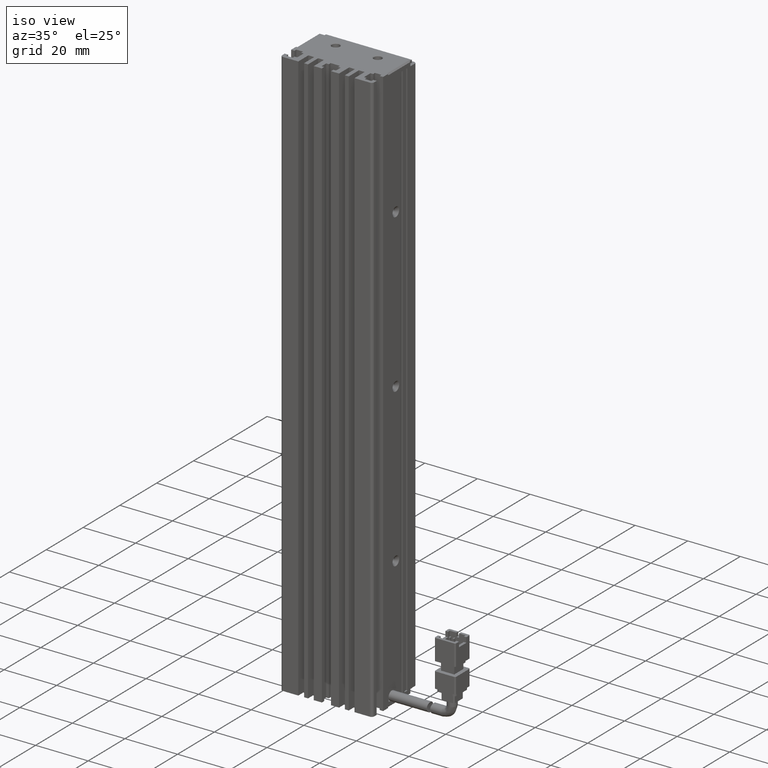
[diagram: clean part render]
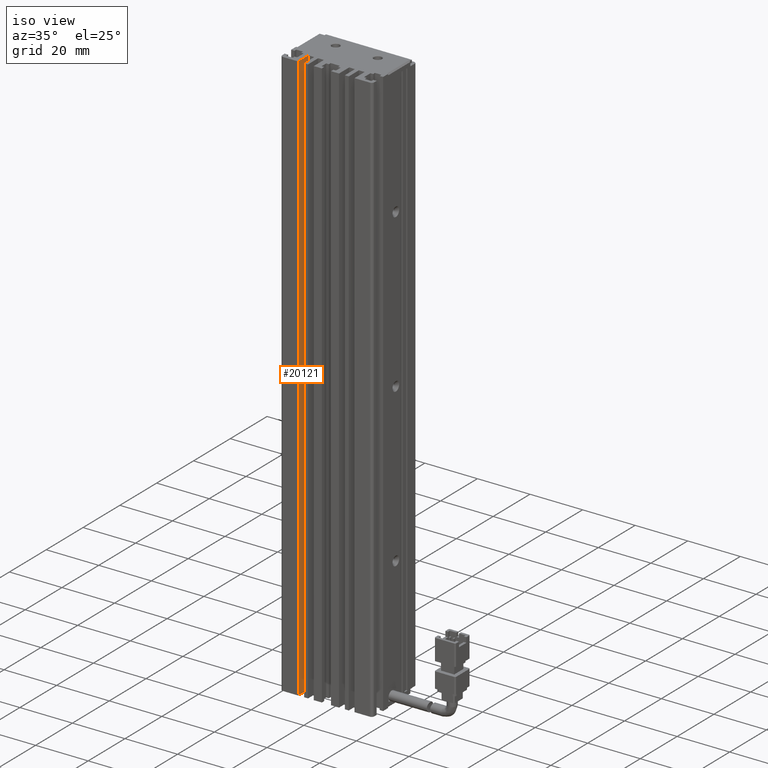
[diagram: same view with one face highlighted and labeled with its STEP entity id]
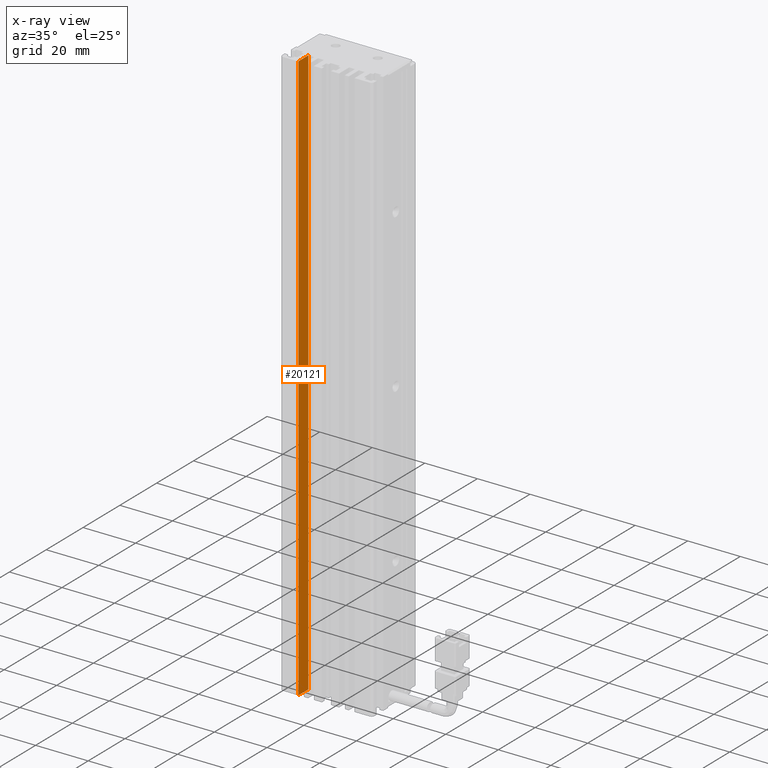
[diagram: x-ray of the same camera — body ghosted, the highlighted face saturated]
A machine part, iso view. The second image highlights one B-rep face of the part: STEP entity #20121.
The next image is the same camera in x-ray: the body ghosted, the highlighted face saturated — about 0% of this face is hidden behind the body in this view.
In plain terms, the highlighted planar face has unit normal (-1, 0, 0).
Its self-contained STEP definition (entity closure, byte-faithful):
#1455 = CARTESIAN_POINT ( 'NONE',  ( 30.22537974683543300, 16.49073232304836600, -6.000000000000005300 ) ) ;
#4064 = CARTESIAN_POINT ( 'NONE',  ( 30.22537974683543300, 16.49073232304836600, -224.0000000000000000 ) ) ;
#5456 = VERTEX_POINT ( 'NONE', #78015 ) ;
#7103 = VECTOR ( 'NONE', #64436, 1000.000000000000000 ) ;
#10813 = EDGE_CURVE ( 'NONE', #34294, #5456, #18056, .T. ) ;
#13615 = CARTESIAN_POINT ( 'NONE',  ( 30.22537974683543300, 7.083797468354437600, -6.000000000000005300 ) ) ;
#14180 = DIRECTION ( 'NONE',  ( -1.000000000000000000, 0.0000000000000000000, 0.0000000000000000000 ) ) ;
#15625 = ORIENTED_EDGE ( 'NONE', *, *, #58828, .T. ) ;
#17068 = ORIENTED_EDGE ( 'NONE', *, *, #10813, .F. ) ;
#18056 = LINE ( 'NONE', #34575, #72891 ) ;
#19891 = CARTESIAN_POINT ( 'NONE',  ( 30.22537974683542900, 10.99073232304837000, -224.0000000000000000 ) ) ;
#20121 = ADVANCED_FACE ( 'NONE', ( #69282 ), #49099, .F. ) ;
#25490 = VERTEX_POINT ( 'NONE', #4064 ) ;
#28395 = DIRECTION ( 'NONE',  ( 0.0000000000000000000, 0.0000000000000000000, 1.000000000000000000 ) ) ;
#31192 = LINE ( 'NONE', #37317, #55235 ) ;
#34294 = VERTEX_POINT ( 'NONE', #19891 ) ;
#34575 = CARTESIAN_POINT ( 'NONE',  ( 30.22537974683543300, 10.99073232304837000, -6.000000000000005300 ) ) ;
#37317 = CARTESIAN_POINT ( 'NONE',  ( 30.22537974683543300, 7.083797468354437600, -6.000000000000005300 ) ) ;
#47312 = ORIENTED_EDGE ( 'NONE', *, *, #89436, .T. ) ;
#49099 = PLANE ( 'NONE',  #64961 ) ;
#55235 = VECTOR ( 'NONE', #65493, 1000.000000000000000 ) ;
#58828 = EDGE_CURVE ( 'NONE', #34294, #25490, #67764, .T. ) ;
#61989 = DIRECTION ( 'NONE',  ( 0.0000000000000000000, 0.0000000000000000000, 1.000000000000000000 ) ) ;
#63944 = VERTEX_POINT ( 'NONE', #66076 ) ;
#64436 = DIRECTION ( 'NONE',  ( 0.0000000000000000000, -0.0000000000000000000, 1.000000000000000000 ) ) ;
#64961 = AXIS2_PLACEMENT_3D ( 'NONE', #13615, #14180, #61989 ) ;
#65493 = DIRECTION ( 'NONE',  ( 0.0000000000000000000, 1.000000000000000000, -0.0000000000000000000 ) ) ;
#66076 = CARTESIAN_POINT ( 'NONE',  ( 30.22537974683543300, 16.49073232304836600, -6.000000000000005300 ) ) ;
#67764 = LINE ( 'NONE', #75934, #84188 ) ;
#69282 = FACE_OUTER_BOUND ( 'NONE', #86598, .T. ) ;
#72891 = VECTOR ( 'NONE', #28395, 1000.000000000000000 ) ;
#74981 = LINE ( 'NONE', #1455, #7103 ) ;
#75327 = DIRECTION ( 'NONE',  ( 0.0000000000000000000, 1.000000000000000000, -0.0000000000000000000 ) ) ;
#75934 = CARTESIAN_POINT ( 'NONE',  ( 30.22537974683543300, 7.083797468354437600, -224.0000000000000000 ) ) ;
#78015 = CARTESIAN_POINT ( 'NONE',  ( 30.22537974683542900, 10.99073232304837000, -6.000000000000005300 ) ) ;
#80464 = EDGE_CURVE ( 'NONE', #5456, #63944, #31192, .T. ) ;
#84188 = VECTOR ( 'NONE', #75327, 1000.000000000000000 ) ;
#86598 = EDGE_LOOP ( 'NONE', ( #47312, #88567, #17068, #15625 ) ) ;
#88567 = ORIENTED_EDGE ( 'NONE', *, *, #80464, .F. ) ;
#89436 = EDGE_CURVE ( 'NONE', #25490, #63944, #74981, .T. ) ;